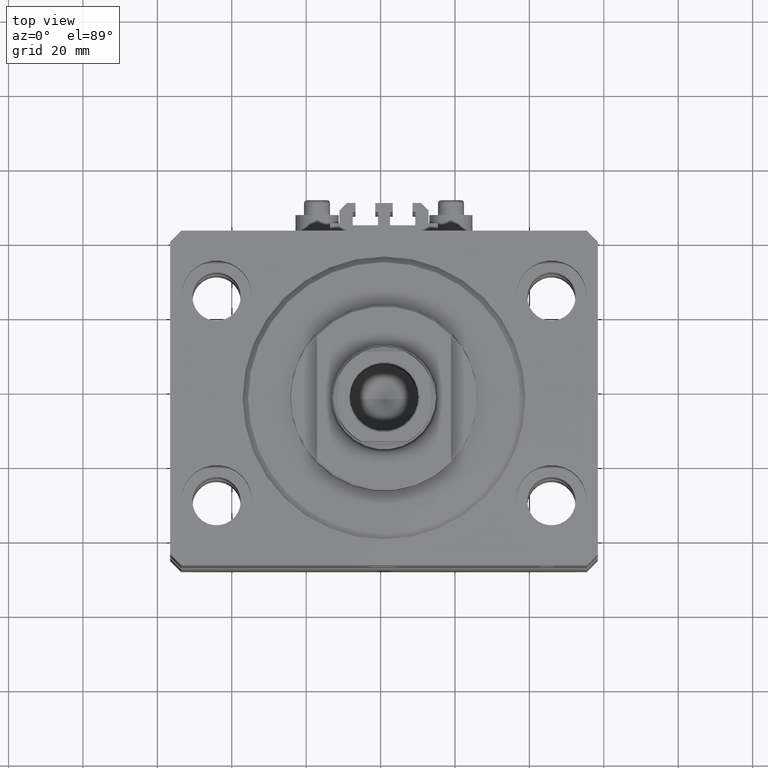
[diagram: clean part render]
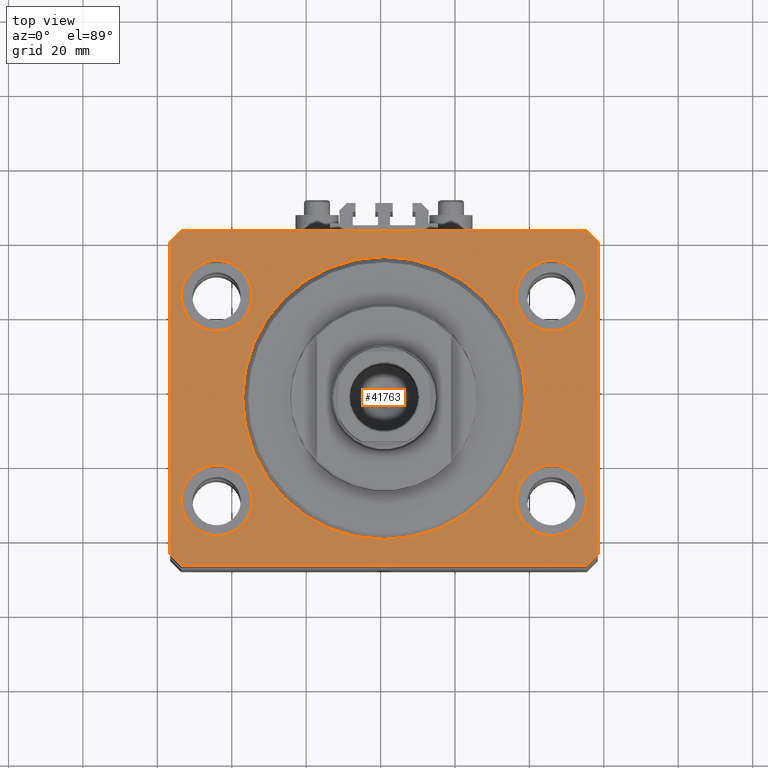
[diagram: same view with one face highlighted and labeled with its STEP entity id]
A machine part, top view. The second image highlights one B-rep face of the part: STEP entity #41763.
In plain terms, the highlighted planar face has unit normal (0, 0, 1).
Its self-contained STEP definition (entity closure, byte-faithful):
#418 = VERTEX_POINT ( 'NONE', #4015 ) ;
#543 = ORIENTED_EDGE ( 'NONE', *, *, #13256, .T. ) ;
#1147 = EDGE_LOOP ( 'NONE', ( #42897, #33570 ) ) ;
#1224 = CARTESIAN_POINT ( 'NONE',  ( 38.00000000000000000, 0.000000000000000000, 0.000000000000000000 ) ) ;
#2479 = VERTEX_POINT ( 'NONE', #8510 ) ;
#2685 = EDGE_CURVE ( 'NONE', #46979, #10152, #25263, .T. ) ;
#3198 = LINE ( 'NONE', #11047, #18093 ) ;
#3327 = VERTEX_POINT ( 'NONE', #46402 ) ;
#3460 = CARTESIAN_POINT ( 'NONE',  ( -54.50000000000000711, -45.00000000000000000, 0.000000000000000000 ) ) ;
#3469 = DIRECTION ( 'NONE',  ( 1.000000000000000000, 0.000000000000000000, 0.000000000000000000 ) ) ;
#3509 = ORIENTED_EDGE ( 'NONE', *, *, #34052, .T. ) ;
#3520 = ORIENTED_EDGE ( 'NONE', *, *, #4146, .F. ) ;
#3549 = CARTESIAN_POINT ( 'NONE',  ( -45.00000000000000000, -27.49999999999999645, 0.000000000000000000 ) ) ;
#3675 = DIRECTION ( 'NONE',  ( -0.7071067811865483499, -0.7071067811865466846, 0.000000000000000000 ) ) ;
#3954 = DIRECTION ( 'NONE',  ( 0.000000000000000000, 0.000000000000000000, 1.000000000000000000 ) ) ;
#4015 = CARTESIAN_POINT ( 'NONE',  ( 54.50000000000000000, -27.49999999999999645, 0.000000000000000000 ) ) ;
#4033 = CARTESIAN_POINT ( 'NONE',  ( 54.50000000000000711, -44.99999999999998579, 0.000000000000000000 ) ) ;
#4146 = EDGE_CURVE ( 'NONE', #29777, #5943, #41847, .T. ) ;
#4339 = DIRECTION ( 'NONE',  ( 0.000000000000000000, 0.000000000000000000, 1.000000000000000000 ) ) ;
#4586 = EDGE_LOOP ( 'NONE', ( #16277, #43444 ) ) ;
#4824 = PLANE ( 'NONE',  #23618 ) ;
#5414 = EDGE_CURVE ( 'NONE', #24932, #31290, #24652, .T. ) ;
#5865 = CARTESIAN_POINT ( 'NONE',  ( -54.49999999999999289, 45.00000000000000000, 0.000000000000000000 ) ) ;
#5943 = VERTEX_POINT ( 'NONE', #13688 ) ;
#7023 = VERTEX_POINT ( 'NONE', #24731 ) ;
#7400 = DIRECTION ( 'NONE',  ( 0.000000000000000000, 0.000000000000000000, 1.000000000000000000 ) ) ;
#7584 = DIRECTION ( 'NONE',  ( -2.478176394252581141E-16, -1.000000000000000000, 0.000000000000000000 ) ) ;
#7608 = LINE ( 'NONE', #37853, #40653 ) ;
#7732 = ORIENTED_EDGE ( 'NONE', *, *, #10548, .T. ) ;
#7765 = EDGE_CURVE ( 'NONE', #28440, #35446, #23755, .T. ) ;
#7913 = CARTESIAN_POINT ( 'NONE',  ( 45.00000000000000000, -27.49999999999999645, 0.000000000000000000 ) ) ;
#8384 = DIRECTION ( 'NONE',  ( 0.7071067811865491270, -0.7071067811865459074, 0.000000000000000000 ) ) ;
#8510 = CARTESIAN_POINT ( 'NONE',  ( -57.50000000000000711, -42.00000000000000711, 0.000000000000000000 ) ) ;
#8878 = CIRCLE ( 'NONE', #15170, 9.500000000000001776 ) ;
#8903 = LINE ( 'NONE', #38195, #15696 ) ;
#9628 = VERTEX_POINT ( 'NONE', #12189 ) ;
#9629 = EDGE_CURVE ( 'NONE', #3327, #36798, #8878, .T. ) ;
#10094 = DIRECTION ( 'NONE',  ( 0.000000000000000000, 0.000000000000000000, 1.000000000000000000 ) ) ;
#10152 = VERTEX_POINT ( 'NONE', #21108 ) ;
#10548 = EDGE_CURVE ( 'NONE', #2479, #24932, #38637, .T. ) ;
#10558 = VECTOR ( 'NONE', #37310, 1000.000000000000000 ) ;
#11047 = CARTESIAN_POINT ( 'NONE',  ( 57.50000000000055422, 41.99999999999997868, 0.000000000000000000 ) ) ;
#11169 = DIRECTION ( 'NONE',  ( 0.000000000000000000, 0.000000000000000000, 1.000000000000000000 ) ) ;
#11467 = VECTOR ( 'NONE', #7584, 1000.000000000000000 ) ;
#11722 = AXIS2_PLACEMENT_3D ( 'NONE', #27969, #20591, #39033 ) ;
#11890 = AXIS2_PLACEMENT_3D ( 'NONE', #30038, #7400, #3469 ) ;
#11959 = FACE_OUTER_BOUND ( 'NONE', #28752, .T. ) ;
#12065 = CARTESIAN_POINT ( 'NONE',  ( -57.50000000000000711, -42.00000000000000711, 0.000000000000000000 ) ) ;
#12189 = CARTESIAN_POINT ( 'NONE',  ( 54.50000000000058975, 45.00000000000002842, 0.000000000000000000 ) ) ;
#12442 = FACE_BOUND ( 'NONE', #23625, .T. ) ;
#13126 = ORIENTED_EDGE ( 'NONE', *, *, #46801, .F. ) ;
#13256 = EDGE_CURVE ( 'NONE', #31290, #35954, #44215, .T. ) ;
#13688 = CARTESIAN_POINT ( 'NONE',  ( -35.50000000000000000, 27.50000000000000355, 0.000000000000000000 ) ) ;
#14080 = CIRCLE ( 'NONE', #11722, 38.00000000000000000 ) ;
#15170 = AXIS2_PLACEMENT_3D ( 'NONE', #45193, #4339, #41501 ) ;
#15455 = CARTESIAN_POINT ( 'NONE',  ( 54.50000000000000000, 27.50000000000001776, 0.000000000000000000 ) ) ;
#15683 = EDGE_LOOP ( 'NONE', ( #40482, #22034 ) ) ;
#15696 = VECTOR ( 'NONE', #27374, 1000.000000000000000 ) ;
#16277 = ORIENTED_EDGE ( 'NONE', *, *, #47791, .F. ) ;
#16536 = CARTESIAN_POINT ( 'NONE',  ( 45.00000000000000000, 27.50000000000001776, 0.000000000000000000 ) ) ;
#17004 = DIRECTION ( 'NONE',  ( 1.000000000000000000, 0.000000000000000000, 0.000000000000000000 ) ) ;
#17768 = CIRCLE ( 'NONE', #45272, 9.500000000000001776 ) ;
#17870 = EDGE_CURVE ( 'NONE', #9628, #46062, #44689, .T. ) ;
#18093 = VECTOR ( 'NONE', #40843, 999.9999999999998863 ) ;
#18611 = VERTEX_POINT ( 'NONE', #26147 ) ;
#18614 = CARTESIAN_POINT ( 'NONE',  ( 54.50000000000058975, 45.00000000000002842, 0.000000000000000000 ) ) ;
#18964 = DIRECTION ( 'NONE',  ( 1.000000000000000000, 0.000000000000000000, 0.000000000000000000 ) ) ;
#18973 = AXIS2_PLACEMENT_3D ( 'NONE', #16536, #19761, #19524 ) ;
#19213 = CARTESIAN_POINT ( 'NONE',  ( 45.00000000000000000, -27.49999999999999645, 0.000000000000000000 ) ) ;
#19269 = ORIENTED_EDGE ( 'NONE', *, *, #17870, .T. ) ;
#19524 = DIRECTION ( 'NONE',  ( 1.000000000000000000, 0.000000000000000000, 0.000000000000000000 ) ) ;
#19725 = DIRECTION ( 'NONE',  ( 0.000000000000000000, 0.000000000000000000, 1.000000000000000000 ) ) ;
#19754 = AXIS2_PLACEMENT_3D ( 'NONE', #3549, #11169, #26438 ) ;
#19761 = DIRECTION ( 'NONE',  ( 0.000000000000000000, 0.000000000000000000, 1.000000000000000000 ) ) ;
#20088 = CARTESIAN_POINT ( 'NONE',  ( 0.000000000000000000, 0.000000000000000000, 0.000000000000000000 ) ) ;
#20185 = CARTESIAN_POINT ( 'NONE',  ( -54.50000000000000000, -27.49999999999999645, 0.000000000000000000 ) ) ;
#20591 = DIRECTION ( 'NONE',  ( 0.000000000000000000, 0.000000000000000000, 1.000000000000000000 ) ) ;
#20870 = EDGE_CURVE ( 'NONE', #7023, #2479, #44981, .T. ) ;
#20881 = EDGE_CURVE ( 'NONE', #5943, #29777, #17768, .T. ) ;
#21108 = CARTESIAN_POINT ( 'NONE',  ( -35.50000000000000000, -27.49999999999999645, 0.000000000000000000 ) ) ;
#21324 = AXIS2_PLACEMENT_3D ( 'NONE', #19213, #3954, #18964 ) ;
#22034 = ORIENTED_EDGE ( 'NONE', *, *, #2685, .F. ) ;
#22411 = EDGE_LOOP ( 'NONE', ( #13126, #48164 ) ) ;
#22603 = DIRECTION ( 'NONE',  ( 0.000000000000000000, 0.000000000000000000, 1.000000000000000000 ) ) ;
#23277 = ORIENTED_EDGE ( 'NONE', *, *, #20870, .T. ) ;
#23313 = FACE_BOUND ( 'NONE', #4586, .T. ) ;
#23618 = AXIS2_PLACEMENT_3D ( 'NONE', #20088, #27231, #42240 ) ;
#23625 = EDGE_LOOP ( 'NONE', ( #44107, #3520 ) ) ;
#23755 = CIRCLE ( 'NONE', #48074, 38.00000000000000000 ) ;
#24652 = LINE ( 'NONE', #39405, #30732 ) ;
#24731 = CARTESIAN_POINT ( 'NONE',  ( -57.49999999999998579, 42.00000000000000711, 0.000000000000000000 ) ) ;
#24877 = VECTOR ( 'NONE', #29922, 1000.000000000000000 ) ;
#24932 = VERTEX_POINT ( 'NONE', #3460 ) ;
#25263 = CIRCLE ( 'NONE', #19754, 9.500000000000001776 ) ;
#25319 = DIRECTION ( 'NONE',  ( 1.000000000000000000, 0.000000000000000000, 0.000000000000000000 ) ) ;
#25632 = CIRCLE ( 'NONE', #41322, 9.500000000000001776 ) ;
#26147 = CARTESIAN_POINT ( 'NONE',  ( 57.50000000000055422, 41.99999999999997868, 0.000000000000000000 ) ) ;
#26438 = DIRECTION ( 'NONE',  ( 1.000000000000000000, 0.000000000000000000, 0.000000000000000000 ) ) ;
#26902 = EDGE_CURVE ( 'NONE', #38062, #418, #25632, .T. ) ;
#27231 = DIRECTION ( 'NONE',  ( 0.000000000000000000, 0.000000000000000000, 1.000000000000000000 ) ) ;
#27374 = DIRECTION ( 'NONE',  ( 6.443258625056715108E-15, 1.000000000000000000, 0.000000000000000000 ) ) ;
#27969 = CARTESIAN_POINT ( 'NONE',  ( 0.000000000000000000, 0.000000000000000000, 0.000000000000000000 ) ) ;
#28440 = VERTEX_POINT ( 'NONE', #48641 ) ;
#28752 = EDGE_LOOP ( 'NONE', ( #19269, #3509, #23277, #7732, #38729, #543, #46546, #34309 ) ) ;
#29490 = CARTESIAN_POINT ( 'NONE',  ( -45.00000000000000000, 27.50000000000000355, 0.000000000000000000 ) ) ;
#29777 = VERTEX_POINT ( 'NONE', #48256 ) ;
#29859 = CARTESIAN_POINT ( 'NONE',  ( 0.000000000000000000, 0.000000000000000000, 0.000000000000000000 ) ) ;
#29922 = DIRECTION ( 'NONE',  ( -1.000000000000000000, -2.546383084002639322E-16, 0.000000000000000000 ) ) ;
#30038 = CARTESIAN_POINT ( 'NONE',  ( -45.00000000000000000, -27.49999999999999645, 0.000000000000000000 ) ) ;
#30732 = VECTOR ( 'NONE', #32264, 1000.000000000000000 ) ;
#31290 = VERTEX_POINT ( 'NONE', #4033 ) ;
#32249 = CARTESIAN_POINT ( 'NONE',  ( -45.00000000000000000, 27.50000000000000355, 0.000000000000000000 ) ) ;
#32264 = DIRECTION ( 'NONE',  ( 1.000000000000000000, 1.273191542001326317E-16, 0.000000000000000000 ) ) ;
#33111 = CIRCLE ( 'NONE', #11890, 9.500000000000001776 ) ;
#33570 = ORIENTED_EDGE ( 'NONE', *, *, #7765, .F. ) ;
#34052 = EDGE_CURVE ( 'NONE', #46062, #7023, #7608, .T. ) ;
#34309 = ORIENTED_EDGE ( 'NONE', *, *, #41406, .T. ) ;
#34363 = FACE_BOUND ( 'NONE', #22411, .T. ) ;
#35446 = VERTEX_POINT ( 'NONE', #1224 ) ;
#35954 = VERTEX_POINT ( 'NONE', #46442 ) ;
#36798 = VERTEX_POINT ( 'NONE', #15455 ) ;
#37310 = DIRECTION ( 'NONE',  ( 0.7071067811865483499, 0.7071067811865466846, 0.000000000000000000 ) ) ;
#37681 = DIRECTION ( 'NONE',  ( 1.000000000000000000, 0.000000000000000000, 0.000000000000000000 ) ) ;
#37853 = CARTESIAN_POINT ( 'NONE',  ( -54.49999999999999289, 45.00000000000000000, 0.000000000000000000 ) ) ;
#37891 = AXIS2_PLACEMENT_3D ( 'NONE', #32249, #10094, #17004 ) ;
#38052 = FACE_BOUND ( 'NONE', #15683, .T. ) ;
#38062 = VERTEX_POINT ( 'NONE', #42483 ) ;
#38195 = CARTESIAN_POINT ( 'NONE',  ( 57.50000000000000711, -41.99999999999998579, 0.000000000000000000 ) ) ;
#38526 = FACE_BOUND ( 'NONE', #1147, .T. ) ;
#38637 = LINE ( 'NONE', #12065, #45837 ) ;
#38729 = ORIENTED_EDGE ( 'NONE', *, *, #5414, .T. ) ;
#38887 = EDGE_CURVE ( 'NONE', #35446, #28440, #14080, .T. ) ;
#39033 = DIRECTION ( 'NONE',  ( 1.000000000000000000, 0.000000000000000000, 0.000000000000000000 ) ) ;
#39405 = CARTESIAN_POINT ( 'NONE',  ( -54.50000000000000711, -45.00000000000000000, 0.000000000000000000 ) ) ;
#40302 = EDGE_CURVE ( 'NONE', #35954, #18611, #8903, .T. ) ;
#40482 = ORIENTED_EDGE ( 'NONE', *, *, #46842, .F. ) ;
#40653 = VECTOR ( 'NONE', #3675, 1000.000000000000000 ) ;
#40843 = DIRECTION ( 'NONE',  ( -0.7071067811865376918, 0.7071067811865574537, 0.000000000000000000 ) ) ;
#41322 = AXIS2_PLACEMENT_3D ( 'NONE', #7913, #19725, #37681 ) ;
#41406 = EDGE_CURVE ( 'NONE', #18611, #9628, #3198, .T. ) ;
#41423 = DIRECTION ( 'NONE',  ( 0.000000000000000000, 0.000000000000000000, 1.000000000000000000 ) ) ;
#41501 = DIRECTION ( 'NONE',  ( 1.000000000000000000, 0.000000000000000000, 0.000000000000000000 ) ) ;
#41763 = ADVANCED_FACE ( 'NONE', ( #38052, #34363, #23313, #12442, #38526, #11959 ), #4824, .T. ) ;
#41847 = CIRCLE ( 'NONE', #37891, 9.500000000000001776 ) ;
#42240 = DIRECTION ( 'NONE',  ( 1.000000000000000000, 0.000000000000000000, -0.000000000000000000 ) ) ;
#42483 = CARTESIAN_POINT ( 'NONE',  ( 35.50000000000000000, -27.49999999999999645, 0.000000000000000000 ) ) ;
#42536 = CIRCLE ( 'NONE', #18973, 9.500000000000001776 ) ;
#42897 = ORIENTED_EDGE ( 'NONE', *, *, #38887, .F. ) ;
#43444 = ORIENTED_EDGE ( 'NONE', *, *, #9629, .F. ) ;
#44107 = ORIENTED_EDGE ( 'NONE', *, *, #20881, .F. ) ;
#44215 = LINE ( 'NONE', #44942, #10558 ) ;
#44689 = LINE ( 'NONE', #18614, #24877 ) ;
#44866 = DIRECTION ( 'NONE',  ( 1.000000000000000000, 0.000000000000000000, 0.000000000000000000 ) ) ;
#44942 = CARTESIAN_POINT ( 'NONE',  ( 54.50000000000000711, -44.99999999999998579, 0.000000000000000000 ) ) ;
#44981 = LINE ( 'NONE', #48657, #11467 ) ;
#45193 = CARTESIAN_POINT ( 'NONE',  ( 45.00000000000000000, 27.50000000000001776, 0.000000000000000000 ) ) ;
#45272 = AXIS2_PLACEMENT_3D ( 'NONE', #29490, #22603, #25319 ) ;
#45773 = CIRCLE ( 'NONE', #21324, 9.500000000000001776 ) ;
#45837 = VECTOR ( 'NONE', #8384, 1000.000000000000114 ) ;
#46062 = VERTEX_POINT ( 'NONE', #5865 ) ;
#46402 = CARTESIAN_POINT ( 'NONE',  ( 35.50000000000000000, 27.50000000000001776, 0.000000000000000000 ) ) ;
#46442 = CARTESIAN_POINT ( 'NONE',  ( 57.50000000000000711, -41.99999999999998579, 0.000000000000000000 ) ) ;
#46546 = ORIENTED_EDGE ( 'NONE', *, *, #40302, .T. ) ;
#46801 = EDGE_CURVE ( 'NONE', #418, #38062, #45773, .T. ) ;
#46842 = EDGE_CURVE ( 'NONE', #10152, #46979, #33111, .T. ) ;
#46979 = VERTEX_POINT ( 'NONE', #20185 ) ;
#47791 = EDGE_CURVE ( 'NONE', #36798, #3327, #42536, .T. ) ;
#48074 = AXIS2_PLACEMENT_3D ( 'NONE', #29859, #41423, #44866 ) ;
#48164 = ORIENTED_EDGE ( 'NONE', *, *, #26902, .F. ) ;
#48256 = CARTESIAN_POINT ( 'NONE',  ( -54.50000000000000000, 27.50000000000000355, 0.000000000000000000 ) ) ;
#48641 = CARTESIAN_POINT ( 'NONE',  ( -38.00000000000000000, 4.653657836759941941E-15, 0.000000000000000000 ) ) ;
#48657 = CARTESIAN_POINT ( 'NONE',  ( -57.49999999999998579, 42.00000000000000711, 0.000000000000000000 ) ) ;